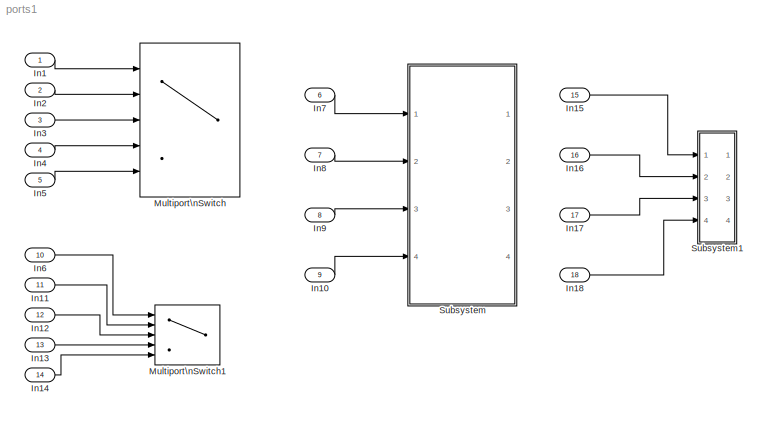
MODEL ports1
KIND model
BLOCK [Inport] In1
  IconDisplay = Port number
  SID = 2
BLOCK [Inport] In10
  IconDisplay = Port number
  Port = 9
  SID = 20
BLOCK [Inport] In11
  IconDisplay = Port number
  Port = 11
  SID = 22
BLOCK [Inport] In12
  IconDisplay = Port number
  Port = 12
  SID = 23
BLOCK [Inport] In13
  IconDisplay = Port number
  Port = 13
  SID = 24
BLOCK [Inport] In14
  IconDisplay = Port number
  Port = 14
  SID = 25
BLOCK [Inport] In15
  IconDisplay = Port number
  Port = 15
  SID = 27
BLOCK [Inport] In16
  IconDisplay = Port number
  Port = 16
  SID = 28
BLOCK [Inport] In17
  IconDisplay = Port number
  Port = 17
  SID = 29
BLOCK [Inport] In18
  IconDisplay = Port number
  Port = 18
  SID = 30
BLOCK [Inport] In2
  IconDisplay = Port number
  Port = 2
  SID = 3
BLOCK [Inport] In3
  IconDisplay = Port number
  Port = 3
  SID = 4
BLOCK [Inport] In4
  IconDisplay = Port number
  Port = 4
  SID = 5
BLOCK [Inport] In5
  IconDisplay = Port number
  Port = 5
  SID = 6
BLOCK [Inport] In6
  IconDisplay = Port number
  Port = 10
  SID = 21
BLOCK [Inport] In7
  IconDisplay = Port number
  Port = 6
  SID = 17
BLOCK [Inport] In8
  IconDisplay = Port number
  Port = 7
  SID = 18
BLOCK [Inport] In9
  IconDisplay = Port number
  Port = 8
  SID = 19
BLOCK [MultiPortSwitch] Multiport\nSwitch
  InputSameDT = off
  Inputs = 4
  Ports = [5, 1]
  SID = 1
  SaturateOnIntegerOverflow = off
BLOCK [MultiPortSwitch] Multiport\nSwitch1
  InputSameDT = off
  Inputs = 4
  Ports = [5, 1]
  SID = 26
  SaturateOnIntegerOverflow = off
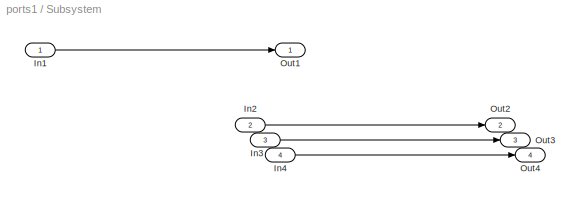
BLOCK [SubSystem] Subsystem
  Ports = [4, 4]
  RequestExecContextInheritance = off
  SID = 7
BLOCK [Inport] Subsystem/In1
  IconDisplay = Port number
  SID = 8
BLOCK [Inport] Subsystem/In2
  IconDisplay = Port number
  Port = 2
  SID = 10
BLOCK [Inport] Subsystem/In3
  IconDisplay = Port number
  Port = 3
  SID = 12
BLOCK [Inport] Subsystem/In4
  IconDisplay = Port number
  Port = 4
  SID = 14
BLOCK [Outport] Subsystem/Out1
  IconDisplay = Port number
  SID = 9
BLOCK [Outport] Subsystem/Out2
  IconDisplay = Port number
  Port = 2
  SID = 11
BLOCK [Outport] Subsystem/Out3
  IconDisplay = Port number
  Port = 3
  SID = 13
BLOCK [Outport] Subsystem/Out4
  IconDisplay = Port number
  Port = 4
  SID = 15
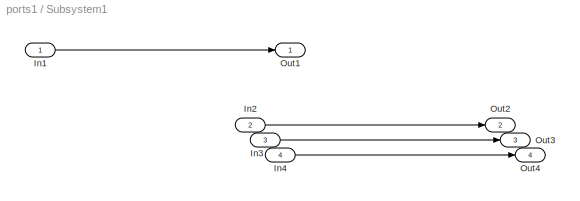
BLOCK [SubSystem] Subsystem1
  Ports = [4, 4]
  RequestExecContextInheritance = off
  SID = 31
BLOCK [Inport] Subsystem1/In1
  IconDisplay = Port number
  SID = 32
BLOCK [Inport] Subsystem1/In2
  IconDisplay = Port number
  Port = 2
  SID = 33
BLOCK [Inport] Subsystem1/In3
  IconDisplay = Port number
  Port = 3
  SID = 34
BLOCK [Inport] Subsystem1/In4
  IconDisplay = Port number
  Port = 4
  SID = 35
BLOCK [Outport] Subsystem1/Out1
  IconDisplay = Port number
  SID = 36
BLOCK [Outport] Subsystem1/Out2
  IconDisplay = Port number
  Port = 2
  SID = 37
BLOCK [Outport] Subsystem1/Out3
  IconDisplay = Port number
  Port = 3
  SID = 38
BLOCK [Outport] Subsystem1/Out4
  IconDisplay = Port number
  Port = 4
  SID = 39
LINE In10:1 -> Subsystem:4
LINE In11:1 -> Multiport\nSwitch1:2
LINE In12:1 -> Multiport\nSwitch1:3
LINE In13:1 -> Multiport\nSwitch1:4
LINE In14:1 -> Multiport\nSwitch1:5
LINE In15:1 -> Subsystem1:1
LINE In16:1 -> Subsystem1:2
LINE In17:1 -> Subsystem1:3
LINE In18:1 -> Subsystem1:4
LINE In1:1 -> Multiport\nSwitch:1
LINE In2:1 -> Multiport\nSwitch:2
LINE In3:1 -> Multiport\nSwitch:3
LINE In4:1 -> Multiport\nSwitch:4
LINE In5:1 -> Multiport\nSwitch:5
LINE In6:1 -> Multiport\nSwitch1:1
LINE In7:1 -> Subsystem:1
LINE In8:1 -> Subsystem:2
LINE In9:1 -> Subsystem:3
LINE Subsystem/In1:1 -> Subsystem/Out1:1
LINE Subsystem/In2:1 -> Subsystem/Out2:1
LINE Subsystem/In3:1 -> Subsystem/Out3:1
LINE Subsystem/In4:1 -> Subsystem/Out4:1
LINE Subsystem1/In1:1 -> Subsystem1/Out1:1
LINE Subsystem1/In2:1 -> Subsystem1/Out2:1
LINE Subsystem1/In3:1 -> Subsystem1/Out3:1
LINE Subsystem1/In4:1 -> Subsystem1/Out4:1
